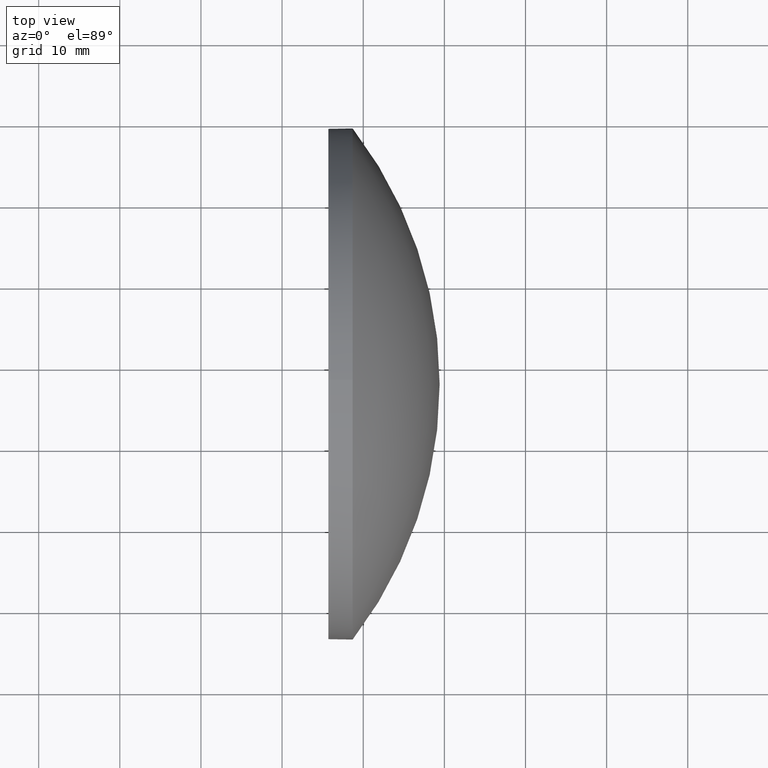
[diagram: clean part render]
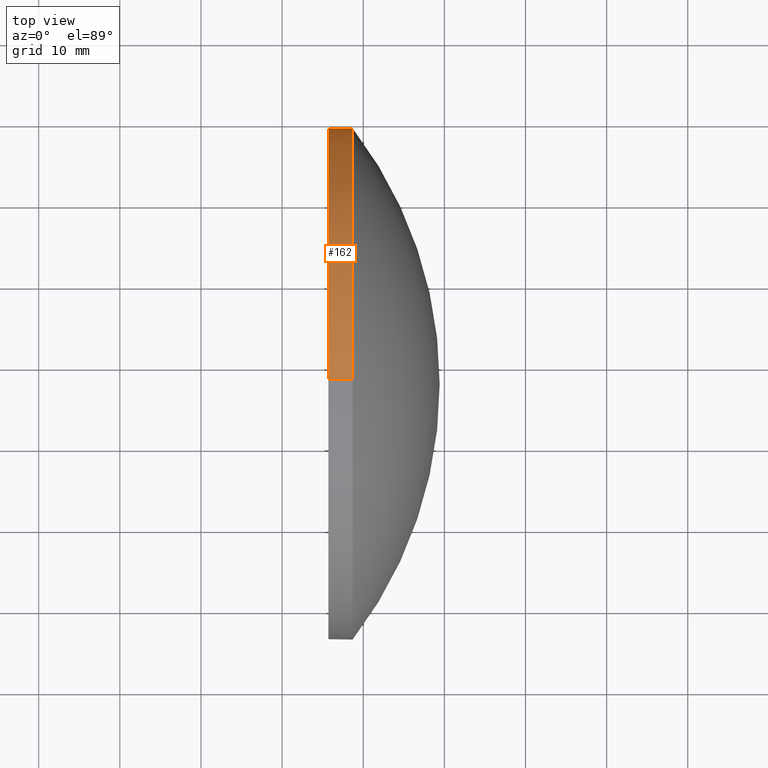
[diagram: same view with one face highlighted and labeled with its STEP entity id]
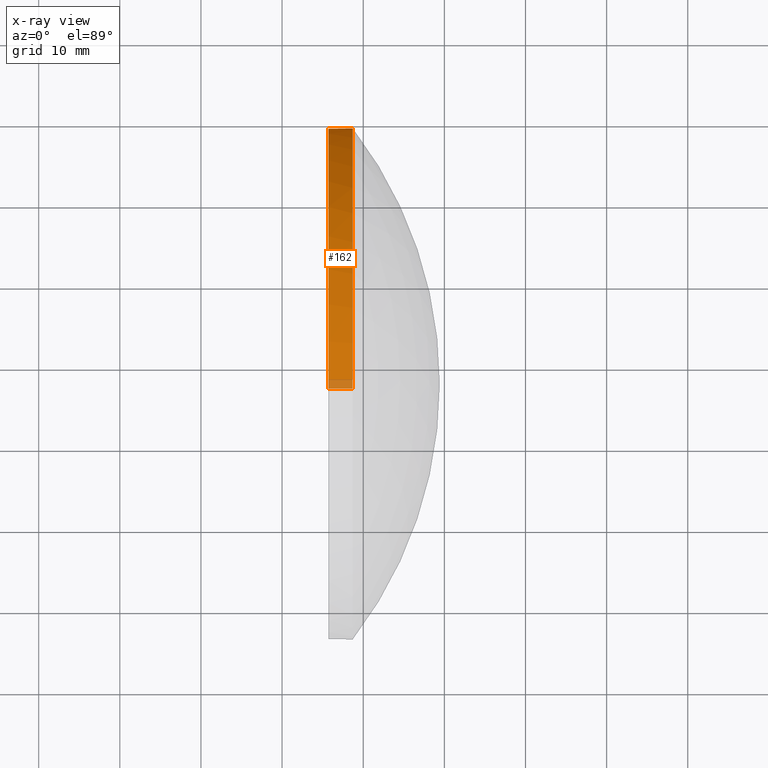
[diagram: x-ray of the same camera — body ghosted, the highlighted face saturated]
A machine part, top view. The second image highlights one B-rep face of the part: STEP entity #162.
The next image is the same camera in x-ray: the body ghosted, the highlighted face saturated — about 3% of this face is hidden behind the body in this view.
In plain terms, the highlighted cylindrical surface (partial cylindrical patch) has radius 31.5 mm, axis along (-1, -0, -0).
Its self-contained STEP definition (entity closure, byte-faithful):
#7 = EDGE_CURVE ( 'NONE', #25, #88, #71, .T. ) ;
#12 = ORIENTED_EDGE ( 'NONE', *, *, #94, .T. ) ;
#13 = EDGE_CURVE ( 'NONE', #126, #172, #120, .T. ) ;
#14 = CARTESIAN_POINT ( 'NONE',  ( 385.7011333870950700, 17.73166339868760100, 0.0000000000000000000 ) ) ;
#16 = VECTOR ( 'NONE', #113, 1000.000000000000000 ) ;
#20 = ORIENTED_EDGE ( 'NONE', *, *, #7, .T. ) ;
#25 = VERTEX_POINT ( 'NONE', #150 ) ;
#26 = LINE ( 'NONE', #97, #16 ) ;
#30 = CARTESIAN_POINT ( 'NONE',  ( 388.7011333870950700, 17.73166339868760100, 0.0000000000000000000 ) ) ;
#31 = DIRECTION ( 'NONE',  ( -1.000000000000000000, -0.0000000000000000000, -0.0000000000000000000 ) ) ;
#32 = EDGE_CURVE ( 'NONE', #54, #126, #118, .T. ) ;
#33 = CARTESIAN_POINT ( 'NONE',  ( 385.7011333870950700, 17.73166339868760100, 31.50000000000000000 ) ) ;
#35 = VECTOR ( 'NONE', #49, 1000.000000000000000 ) ;
#41 = FACE_OUTER_BOUND ( 'NONE', #138, .T. ) ;
#42 = AXIS2_PLACEMENT_3D ( 'NONE', #14, #60, #134 ) ;
#48 = CARTESIAN_POINT ( 'NONE',  ( 366.6621783252726300, 17.73166339868760100, 0.0000000000000000000 ) ) ;
#49 = DIRECTION ( 'NONE',  ( -1.000000000000000000, -0.0000000000000000000, -0.0000000000000000000 ) ) ;
#54 = VERTEX_POINT ( 'NONE', #164 ) ;
#60 = DIRECTION ( 'NONE',  ( -1.000000000000000000, -0.0000000000000000000, -0.0000000000000000000 ) ) ;
#71 = CIRCLE ( 'NONE', #186, 31.50000000000000000 ) ;
#88 = VERTEX_POINT ( 'NONE', #127 ) ;
#92 = AXIS2_PLACEMENT_3D ( 'NONE', #48, #125, #181 ) ;
#94 = EDGE_CURVE ( 'NONE', #88, #172, #26, .T. ) ;
#97 = CARTESIAN_POINT ( 'NONE',  ( 366.6621783252726300, 17.73166339868760500, -31.50000000000000000 ) ) ;
#108 = CARTESIAN_POINT ( 'NONE',  ( 366.6621783252726300, 17.73166339868760100, 31.50000000000000000 ) ) ;
#111 = AXIS2_PLACEMENT_3D ( 'NONE', #156, #137, #153 ) ;
#113 = DIRECTION ( 'NONE',  ( -1.000000000000000000, -0.0000000000000000000, -0.0000000000000000000 ) ) ;
#116 = CYLINDRICAL_SURFACE ( 'NONE', #92, 31.50000000000000000 ) ;
#118 = LINE ( 'NONE', #108, #35 ) ;
#119 = ORIENTED_EDGE ( 'NONE', *, *, #149, .T. ) ;
#120 = CIRCLE ( 'NONE', #42, 31.50000000000000000 ) ;
#125 = DIRECTION ( 'NONE',  ( -1.000000000000000000, -0.0000000000000000000, -0.0000000000000000000 ) ) ;
#126 = VERTEX_POINT ( 'NONE', #33 ) ;
#127 = CARTESIAN_POINT ( 'NONE',  ( 388.7011333870950700, 17.73166339868760500, -31.50000000000000000 ) ) ;
#134 = DIRECTION ( 'NONE',  ( 0.0000000000000000000, 0.0000000000000000000, 1.000000000000000000 ) ) ;
#137 = DIRECTION ( 'NONE',  ( -1.000000000000000000, -0.0000000000000000000, -0.0000000000000000000 ) ) ;
#138 = EDGE_LOOP ( 'NONE', ( #20, #12, #158, #145, #119 ) ) ;
#145 = ORIENTED_EDGE ( 'NONE', *, *, #32, .F. ) ;
#149 = EDGE_CURVE ( 'NONE', #54, #25, #161, .T. ) ;
#150 = CARTESIAN_POINT ( 'NONE',  ( 388.7011333870950700, 49.23166339868760800, 0.0000000000000000000 ) ) ;
#153 = DIRECTION ( 'NONE',  ( 0.0000000000000000000, 0.0000000000000000000, 1.000000000000000000 ) ) ;
#156 = CARTESIAN_POINT ( 'NONE',  ( 388.7011333870950700, 17.73166339868760100, 0.0000000000000000000 ) ) ;
#158 = ORIENTED_EDGE ( 'NONE', *, *, #13, .F. ) ;
#161 = CIRCLE ( 'NONE', #111, 31.50000000000000000 ) ;
#162 = ADVANCED_FACE ( 'NONE', ( #41 ), #116, .T. ) ;
#164 = CARTESIAN_POINT ( 'NONE',  ( 388.7011333870950700, 17.73166339868760100, 31.50000000000000000 ) ) ;
#168 = CARTESIAN_POINT ( 'NONE',  ( 385.7011333870950700, 17.73166339868760500, -31.50000000000000000 ) ) ;
#172 = VERTEX_POINT ( 'NONE', #168 ) ;
#175 = DIRECTION ( 'NONE',  ( 0.0000000000000000000, 0.0000000000000000000, 1.000000000000000000 ) ) ;
#181 = DIRECTION ( 'NONE',  ( 0.0000000000000000000, 0.0000000000000000000, 1.000000000000000000 ) ) ;
#186 = AXIS2_PLACEMENT_3D ( 'NONE', #30, #31, #175 ) ;